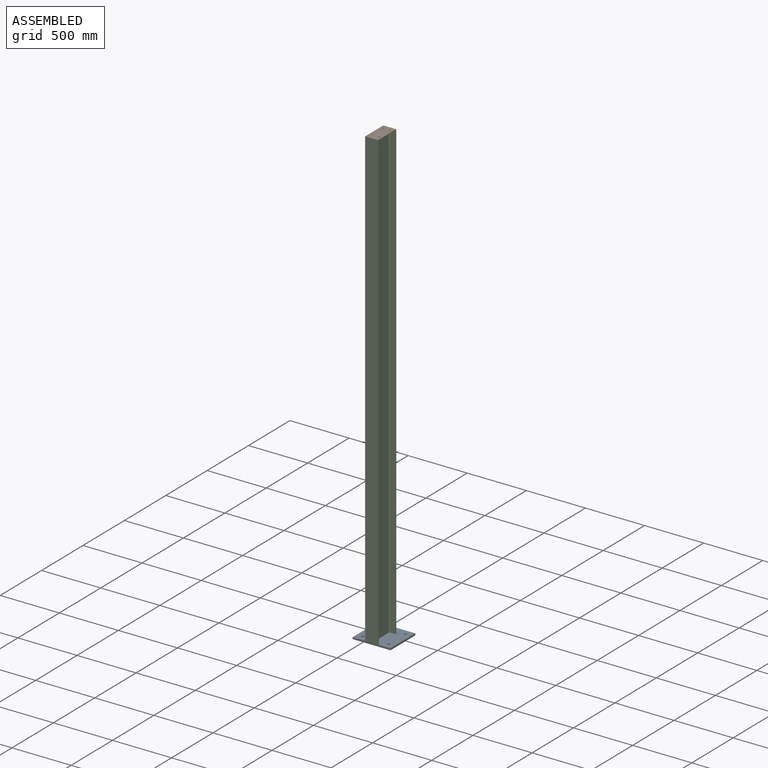
[diagram: assembled view]
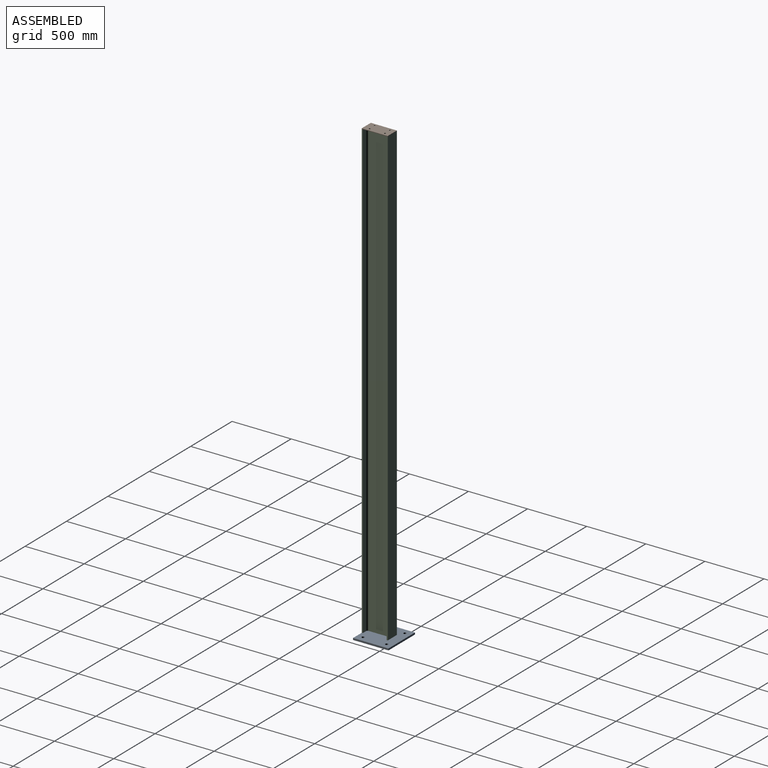
[diagram: assembled view, second angle]
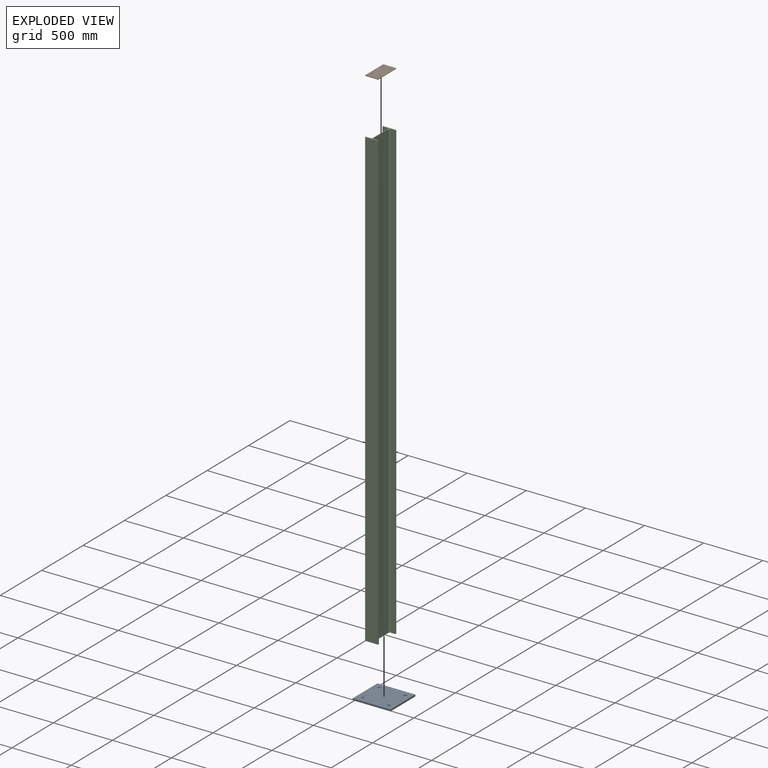
[diagram: exploded view]
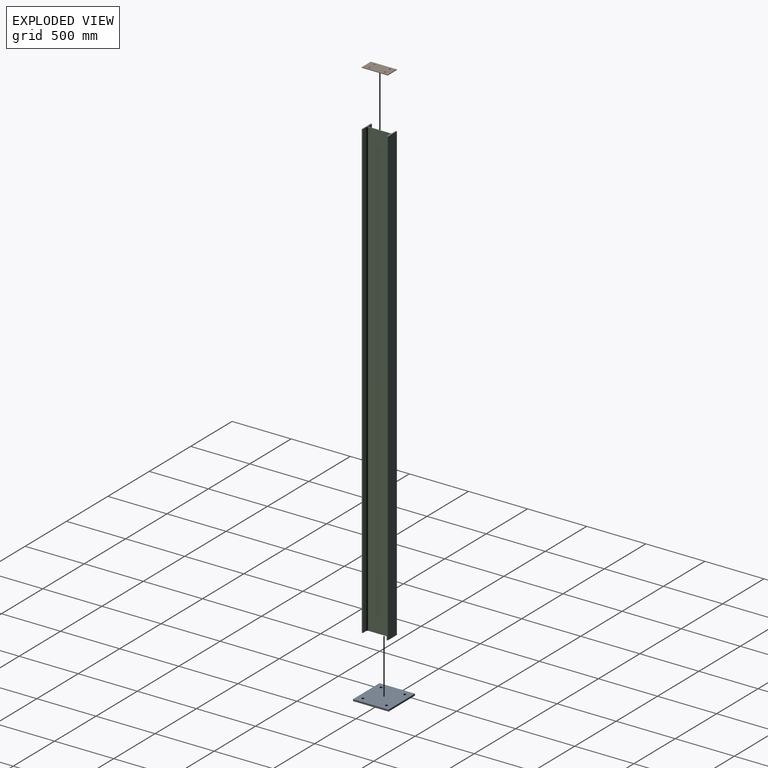
[diagram: exploded view, second angle]
ASSEMBLY  parts=3 mates=2
PART A: 10 faces, bbox 320x300x15 mm
  f0: cylinder r=12mm len=24mm, axis (0,0,-1), area 1131mm2, adj f4,f5
  f1: cylinder r=12mm len=24mm, axis (0,0,-1), area 1131mm2, adj f4,f5
  f2: cylinder r=12mm len=24mm, axis (0,0,-1), area 1131mm2, adj f4,f5
  f3: cylinder r=12mm len=24mm, axis (0,0,-1), area 1131mm2, adj f4,f5
  f4: plane 320x300mm, normal (0,0,1), area 94190.4mm2, adj f0,f1,f2,f3,f6,f7,f8,f9
  f5: plane 320x300mm, normal (0,0,-1), area 94190.4mm2, adj f0,f1,f2,f3,f6,f7,f8,f9
  f6: plane 300x15mm, normal (-1,0,0), area 4500mm2, adj f4,f5,f7,f9
  f7: plane 320x15mm, normal (0,-1,0), area 4800mm2, adj f4,f5,f6,f8
  f8: plane 300x15mm, normal (1,0,0), area 4500mm2, adj f4,f5,f7,f9
  f9: plane 320x15mm, normal (0,1,0), area 4800mm2, adj f4,f5,f6,f8
PART B: 10 faces, bbox 110x220x5 mm
  f0: cylinder r=7mm len=14mm, axis (0,0,-1), area 219.9mm2, adj f8,f9
  f1: cylinder r=7mm len=14mm, axis (0,0,-1), area 219.9mm2, adj f8,f9
  f2: cylinder r=7mm len=14mm, axis (0,0,-1), area 219.9mm2, adj f8,f9
  f3: cylinder r=7mm len=14mm, axis (0,0,-1), area 219.9mm2, adj f8,f9
  f4: plane 220x5mm, normal (-1,0,0), area 1100mm2, adj f5,f7,f8,f9
  f5: plane 110x5mm, normal (0,-1,0), area 550mm2, adj f4,f6,f8,f9
  f6: plane 220x5mm, normal (1,0,0), area 1100mm2, adj f5,f7,f8,f9
  f7: plane 110x5mm, normal (0,1,0), area 550mm2, adj f4,f6,f8,f9
  f8: plane 220x110mm, normal (0,0,1), area 23584.2mm2, adj f0,f1,f2,f3,f4,f5,f6,f7
  f9: plane 220x110mm, normal (0,0,-1), area 23584.2mm2, adj f0,f1,f2,f3,f4,f5,f6,f7
PART C: 18 faces, bbox 110x220x3852 mm
  f0: plane 220x110mm, normal (0,0,-1), area 3337.1mm2, adj f2,f3,f4,f5,f6,f7,f8,f9
  f1: plane 220x110mm, normal (0,0,1), area 3337.1mm2, adj f2,f3,f4,f5,f6,f7,f8,f9
  f2: plane 3852x40.05mm, normal (0,1,0), area 154272.6mm2, adj f0,f1,f3,f17
  f3: cylinder r=12mm len=3852mm, axis (0,0,1), area 72608.6mm2, adj f0,f1,f2,f4
  f4: plane 3852x177.6mm, normal (1,0,0), area 684115.2mm2, adj f0,f1,f3,f5
  f5: cylinder r=12mm len=3852mm, axis (0,0,1), area 72608.6mm2, adj f0,f1,f4,f6
  f6: plane 3852x40.05mm, normal (0,-1,0), area 154272.6mm2, adj f0,f1,f5,f7
  f7: plane 3852x9.2mm, normal (1,0,0), area 35438.4mm2, adj f0,f1,f6,f8
  f8: plane 3852x110mm, normal (0,1,0), area 423720mm2, adj f0,f1,f7,f9
  f9: plane 3852x9.2mm, normal (-1,0,0), area 35438.4mm2, adj f0,f1,f8,f10
  f10: plane 3852x40.05mm, normal (0,-1,0), area 154272.6mm2, adj f0,f1,f9,f11
  f11: cylinder r=12mm len=3852mm, axis (0,0,1), area 72608.6mm2, adj f0,f1,f10,f12
  f12: plane 3852x177.6mm, normal (-1,0,0), area 684115.2mm2, adj f0,f1,f11,f13
  f13: cylinder r=12mm len=3852mm, axis (0,0,1), area 72608.6mm2, adj f0,f1,f12,f14
  f14: plane 3852x40.05mm, normal (0,1,0), area 154272.6mm2, adj f0,f1,f13,f15
  f15: plane 3852x9.2mm, normal (-1,0,0), area 35438.4mm2, adj f0,f1,f14,f16
  f16: plane 3852x110mm, normal (0,-1,0), area 423720mm2, adj f0,f1,f15,f17
  f17: plane 3852x9.2mm, normal (1,0,0), area 35438.4mm2, adj f0,f1,f2,f16
PLACE A t=(13059,-110,0)mm
PLACE B t=(13164,-110,3867)mm
PLACE C at identity
MATE fastened A.f4 <-> C.f0  axis (0,0,1) through (13219,-110,15)mm
MATE fastened B.f9 <-> C.f1  axis (0,0,1) through (13164,-110,3867)mm
